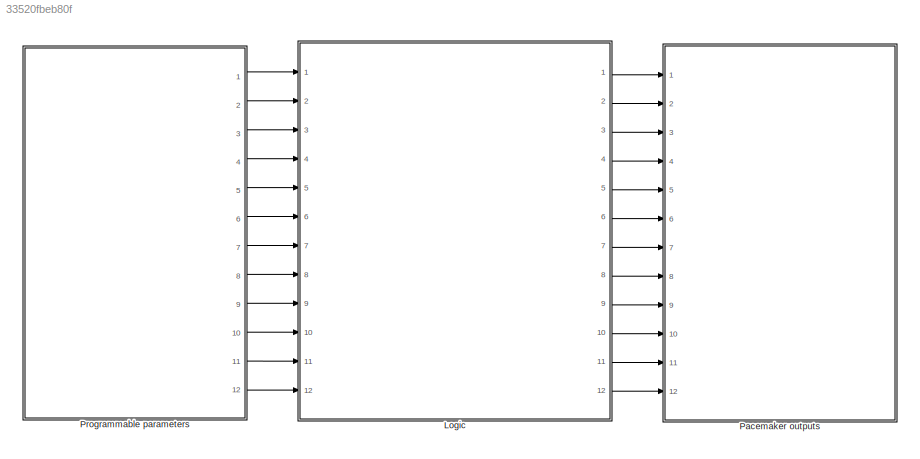
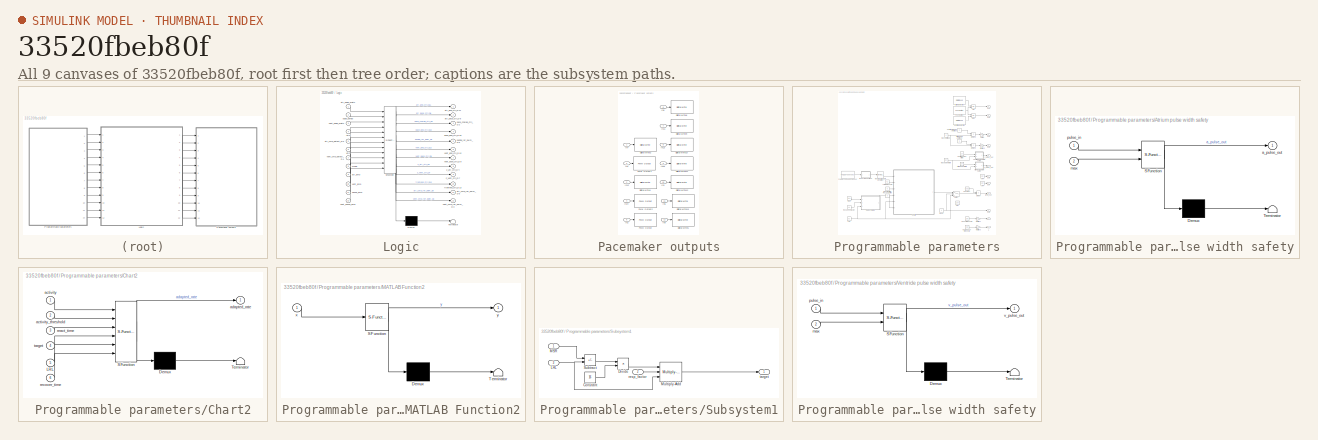
[diagram: thumbnail index - all 9 canvases of the model, root first then tree order]
MODEL slx_33520fbeb80f
KIND model
CONFIG AbsTol = auto
CONFIG EnableMultiTasking = on
CONFIG FixedStep = 1e-3
CONFIG MaxStep = auto
CONFIG MinStep = auto
CONFIG RelTol = 1e-3
CONFIG SampleTimeConstraint = Unconstrained
CONFIG Solver = FixedStepAuto
CONFIG SolverName = FixedStepAuto
CONFIG StartTime = 0.0
CONFIG StopTime = 10.0
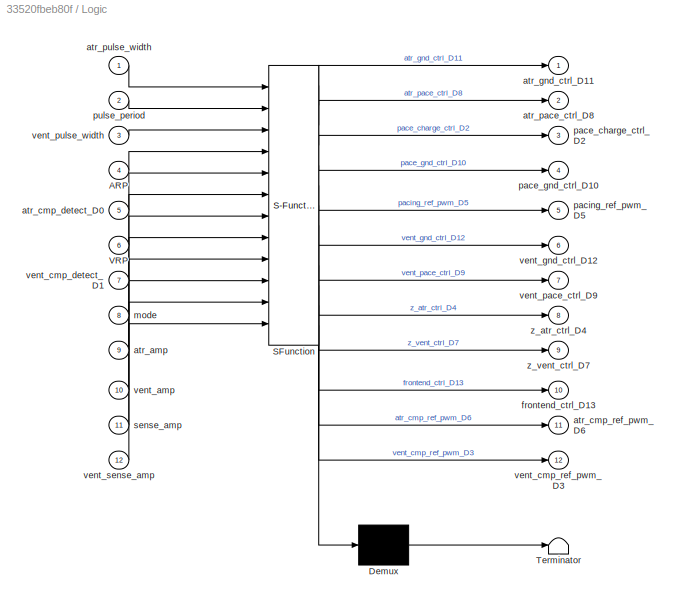
BLOCK [SubSystem] Logic
  ErrorFcn = Stateflow.Translate.translate
  PermitHierarchicalResolution = ExplicitOnly
  PortSchema = {"entries":[{"content":{"sides":[{"content":{"connectorIds":["In5","In7","In8","In10","In9","In3","In1","In6","In4","In2","In11","In12"]},"type":"ConnectorPlacement.EquallySpacedRectSide","uuid":"2bdca257-8b9d-4aeb-8f95-3d09a0a4a1f1"},{"content":{"connectorIds":["Out3","Out8","Out12","Out5","Out11","Out9","Out2","Out7","Out4","Out1","Out6","Out10"],"side":"RIGHT"},"type":"ConnectorPlacement.Equall...<+391ch>
  Ports = [12, 12]
  RequestExecContextInheritance = off
  SFBlockType = Chart
  TreatAsAtomicUnit = on
BLOCK [Demux] Logic/ Demux 
  Outputs = 1
  Ports = [1, 1]
BLOCK [S-Function] Logic/ SFunction 
  EnableBusSupport = on
  FunctionName = sf_sfun
  PortCounts = [12 13]
  Ports = [12, 13]
  SFcnIsStateOwnerBlock = off
  SFunctionDeploymentMode = off
  Tag = Stateflow S-Function 4
BLOCK [Terminator] Logic/ Terminator 
BLOCK [Inport] Logic/ARP
  Port = 4
BLOCK [Inport] Logic/VRP
  Port = 6
BLOCK [Inport] Logic/atr_amp
  Port = 9
BLOCK [Inport] Logic/atr_cmp_detect_D0
  Port = 5
BLOCK [Outport] Logic/atr_cmp_ref_pwm_D6
  Port = 11
BLOCK [Outport] Logic/atr_gnd_ctrl_D11
BLOCK [Outport] Logic/atr_pace_ctrl_D8
  Port = 2
BLOCK [Inport] Logic/atr_pulse_width
BLOCK [Outport] Logic/frontend_ctrl_D13
  Port = 10
BLOCK [Inport] Logic/mode
  Port = 8
BLOCK [Outport] Logic/pace_charge_ctrl_D2
  Port = 3
BLOCK [Outport] Logic/pace_gnd_ctrl_D10
  Port = 4
BLOCK [Outport] Logic/pacing_ref_pwm_D5
  Port = 5
BLOCK [Inport] Logic/pulse_period
  Port = 2
BLOCK [Inport] Logic/sense_amp
  Port = 11
BLOCK [Inport] Logic/vent_amp
  Port = 10
BLOCK [Inport] Logic/vent_cmp_detect_D1
  Port = 7
BLOCK [Outport] Logic/vent_cmp_ref_pwm_D3
  Port = 12
BLOCK [Outport] Logic/vent_gnd_ctrl_D12
  Port = 6
BLOCK [Outport] Logic/vent_pace_ctrl_D9
  Port = 7
BLOCK [Inport] Logic/vent_pulse_width
  Port = 3
BLOCK [Inport] Logic/vent_sense_amp
  Port = 12
BLOCK [Outport] Logic/z_atr_ctrl_D4
  Port = 8
BLOCK [Outport] Logic/z_vent_ctrl_D7
  Port = 9
BLOCK [SubSystem] Pacemaker outputs
  Ports = [12]
  RequestExecContextInheritance = off
BLOCK [Reference] Pacemaker outputs/Digital Write1  REF=frdmk64flib/Digital Write
  Ports = [1]
  SourceBlock = frdmk64flib/Digital Write
  SourceProductBaseCode = EC_FRDM_K64F
  SourceType = freedomk64f.DigitalWrite
BLOCK [Reference] Pacemaker outputs/Digital Write10  REF=frdmk64flib/Digital Write
  Ports = [1]
  SourceBlock = frdmk64flib/Digital Write
  SourceProductBaseCode = EC_FRDM_K64F
  SourceType = freedomk64f.DigitalWrite
BLOCK [Reference] Pacemaker outputs/Digital Write11  REF=frdmk64flib/Digital Write
  Ports = [1]
  SourceBlock = frdmk64flib/Digital Write
  SourceProductBaseCode = EC_FRDM_K64F
  SourceType = freedomk64f.DigitalWrite
BLOCK [Reference] Pacemaker outputs/Digital Write12  REF=frdmk64flib/Digital Write
  Ports = [1]
  SourceBlock = frdmk64flib/Digital Write
  SourceProductBaseCode = EC_FRDM_K64F
  SourceType = freedomk64f.DigitalWrite
BLOCK [Reference] Pacemaker outputs/Digital Write13  REF=frdmk64flib/Digital Write
  Ports = [1]
  SourceBlock = frdmk64flib/Digital Write
  SourceProductBaseCode = EC_FRDM_K64F
  SourceType = freedomk64f.DigitalWrite
BLOCK [Reference] Pacemaker outputs/Digital Write2  REF=frdmk64flib/Digital Write
  Ports = [1]
  SourceBlock = frdmk64flib/Digital Write
  SourceProductBaseCode = EC_FRDM_K64F
  SourceType = freedomk64f.DigitalWrite
BLOCK [Reference] Pacemaker outputs/Digital Write4  REF=frdmk64flib/Digital Write
  Ports = [1]
  SourceBlock = frdmk64flib/Digital Write
  SourceProductBaseCode = EC_FRDM_K64F
  SourceType = freedomk64f.DigitalWrite
BLOCK [Reference] Pacemaker outputs/Digital Write8  REF=frdmk64flib/Digital Write
  Ports = [1]
  SourceBlock = frdmk64flib/Digital Write
  SourceProductBaseCode = EC_FRDM_K64F
  SourceType = freedomk64f.DigitalWrite
BLOCK [Reference] Pacemaker outputs/Digital Write9  REF=frdmk64flib/Digital Write
  Ports = [1]
  SourceBlock = frdmk64flib/Digital Write
  SourceProductBaseCode = EC_FRDM_K64F
  SourceType = freedomk64f.DigitalWrite
BLOCK [Inport] Pacemaker outputs/In1
  Port = 3
BLOCK [Inport] Pacemaker outputs/In11
  Port = 7
BLOCK [Inport] Pacemaker outputs/In12
  Port = 2
BLOCK [Inport] Pacemaker outputs/In13
  Port = 8
BLOCK [Inport] Pacemaker outputs/In14
  Port = 4
BLOCK [Inport] Pacemaker outputs/In15
  Port = 9
BLOCK [Inport] Pacemaker outputs/In2
  Port = 5
BLOCK [Inport] Pacemaker outputs/In3
  Port = 10
BLOCK [Inport] Pacemaker outputs/In6
  Port = 11
BLOCK [Inport] Pacemaker outputs/In7
BLOCK [Inport] Pacemaker outputs/In8
  Port = 6
BLOCK [Inport] Pacemaker outputs/In9
  Port = 12
BLOCK [Reference] Pacemaker outputs/PWM Output  REF=frdmk64flib/PWM Output
  Ports = [1]
  SourceBlock = frdmk64flib/PWM Output
  SourceProductBaseCode = EC_FRDM_K64F
  SourceType = freedomk64f.PWMOutput
BLOCK [Reference] Pacemaker outputs/PWM Output1  REF=frdmk64flib/PWM Output
  Ports = [1]
  SourceBlock = frdmk64flib/PWM Output
  SourceProductBaseCode = EC_FRDM_K64F
  SourceType = freedomk64f.PWMOutput
BLOCK [Reference] Pacemaker outputs/PWM Output2  REF=frdmk64flib/PWM Output
  Ports = [1]
  SourceBlock = frdmk64flib/PWM Output
  SourceProductBaseCode = EC_FRDM_K64F
  SourceType = freedomk64f.PWMOutput
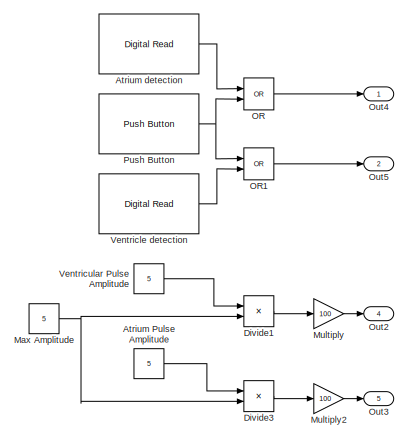
[diagram: Programmable parameters - part 1/2, top right region]
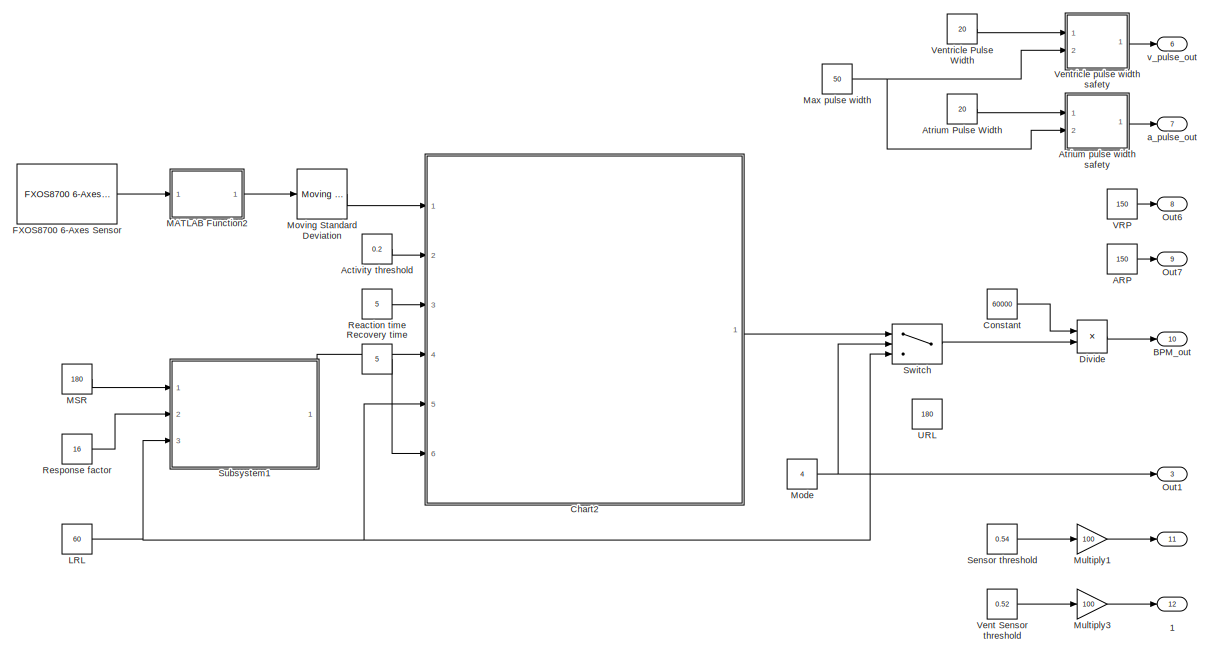
[diagram: Programmable parameters - part 2/2, full width, bottom band]
BLOCK [SubSystem] Programmable parameters
  Ports = [0, 12]
  RequestExecContextInheritance = off
BLOCK [Outport] Programmable parameters/                                                
  Port = 11
BLOCK [Outport] Programmable parameters/                                                1
  IconDisplay = Port number and signal name
  Port = 12
BLOCK [Constant] Programmable parameters/ARP
  Value = 150
BLOCK [Constant] Programmable parameters/Activity threshold
  Value = 0.2
BLOCK [Constant] Programmable parameters/Atrium Pulse Amplitude
  Value = 5
BLOCK [Constant] Programmable parameters/Atrium Pulse Width
  Value = 20
BLOCK [Reference] Programmable parameters/Atrium detection  REF=frdmk64flib/Digital Read
  Ports = [0, 1]
  SourceBlock = frdmk64flib/Digital Read
  SourceProductBaseCode = EC_FRDM_K64F
  SourceType = freedomk64f.DigitalRead
BLOCK [SubSystem] Programmable parameters/Atrium pulse width safety
  ErrorFcn = Stateflow.Translate.translate
  PermitHierarchicalResolution = ExplicitOnly
  Ports = [2, 1]
  RequestExecContextInheritance = off
  SFBlockType = Chart
  TreatAsAtomicUnit = on
BLOCK [Demux] Programmable parameters/Atrium pulse width safety/ Demux 
  Outputs = 1
  Ports = [1, 1]
BLOCK [S-Function] Programmable parameters/Atrium pulse width safety/ SFunction 
  EnableBusSupport = on
  FunctionName = sf_sfun
  PortCounts = [2 2]
  Ports = [2, 2]
  SFcnIsStateOwnerBlock = off
  SFunctionDeploymentMode = off
  Tag = Stateflow S-Function 1
BLOCK [Terminator] Programmable parameters/Atrium pulse width safety/ Terminator 
BLOCK [Outport] Programmable parameters/Atrium pulse width safety/a_pulse_out
BLOCK [Inport] Programmable parameters/Atrium pulse width safety/max
  Port = 2
BLOCK [Inport] Programmable parameters/Atrium pulse width safety/pulse_in
BLOCK [Outport] Programmable parameters/BPM_out
  Port = 10
BLOCK [SubSystem] Programmable parameters/Chart2
  ErrorFcn = Stateflow.Translate.translate
  PermitHierarchicalResolution = ExplicitOnly
  PortSchema = {"entries":[{"content":{"sides":[{"content":{"connectorIds":["In1","In2","In3","In6","In4","In5"]},"type":"ConnectorPlacement.EquallySpacedRectSide","uuid":"bb9994d7-39bc-48cc-973a-fbe19809742a"},{"content":{"connectorIds":["Out1"],"side":"RIGHT"},"type":"ConnectorPlacement.EquallySpacedRectSide","uuid":"20773666-cf4d-4804-bbb0-64c8e4eaf526"},{"content":{"connectorIds":[],"side":"TOP"},"type":"Con...<+272ch>
  Ports = [6, 1]
  RequestExecContextInheritance = off
  SFBlockType = Chart
  TreatAsAtomicUnit = on
BLOCK [Demux] Programmable parameters/Chart2/ Demux 
  Outputs = 1
  Ports = [1, 1]
BLOCK [S-Function] Programmable parameters/Chart2/ SFunction 
  EnableBusSupport = on
  FunctionName = sf_sfun
  PortCounts = [6 2]
  Ports = [6, 2]
  SFcnIsStateOwnerBlock = off
  SFunctionDeploymentMode = off
  Tag = Stateflow S-Function 6
BLOCK [Terminator] Programmable parameters/Chart2/ Terminator 
BLOCK [Inport] Programmable parameters/Chart2/LRL
  Port = 5
BLOCK [Inport] Programmable parameters/Chart2/activity
BLOCK [Inport] Programmable parameters/Chart2/activity_threshold
  Port = 2
BLOCK [Outport] Programmable parameters/Chart2/adapted_rate
BLOCK [Inport] Programmable parameters/Chart2/react_time
  Port = 3
BLOCK [Inport] Programmable parameters/Chart2/recover_time
  Port = 6
BLOCK [Inport] Programmable parameters/Chart2/target
  Port = 4
BLOCK [Constant] Programmable parameters/Constant
  Value = 60000
BLOCK [Product] Programmable parameters/Divide
  Inputs = */
  Ports = [2, 1]
BLOCK [Product] Programmable parameters/Divide1
  Inputs = */
  Ports = [2, 1]
BLOCK [Product] Programmable parameters/Divide3
  Inputs = */
  Ports = [2, 1]
BLOCK [Reference] Programmable parameters/FXOS8700 6-Axes Sensor  REF=frdmk64flib/FXOS8700 6-Axes Sensor
  Ports = [0, 1]
  SourceBlock = frdmk64flib/FXOS8700 6-Axes Sensor
  SourceProductBaseCode = EC_FRDM_K64F
  SourceType = freedomk64f.fxos8700
BLOCK [Constant] Programmable parameters/LRL
  OutDataTypeStr = uint16
  Value = 60
BLOCK [SubSystem] Programmable parameters/MATLAB Function2
  ErrorFcn = Stateflow.Translate.translate
  PermitHierarchicalResolution = ExplicitOnly
  Ports = [1, 1]
  RequestExecContextInheritance = off
  SFBlockType = MATLAB Function
  TreatAsAtomicUnit = on
BLOCK [Demux] Programmable parameters/MATLAB Function2/ Demux 
  Outputs = 1
  Ports = [1, 1]
BLOCK [S-Function] Programmable parameters/MATLAB Function2/ SFunction 
  EnableBusSupport = on
  FunctionName = sf_sfun
  PortCounts = [1 2]
  Ports = [1, 2]
  SFcnIsStateOwnerBlock = off
  SFunctionDeploymentMode = off
  Tag = Stateflow S-Function 8
BLOCK [Terminator] Programmable parameters/MATLAB Function2/ Terminator 
BLOCK [Inport] Programmable parameters/MATLAB Function2/x
BLOCK [Outport] Programmable parameters/MATLAB Function2/y
  VectorParamsAs1DForOutWhenUnconnected = off
BLOCK [Constant] Programmable parameters/MSR
  OutDataTypeStr = uint16
  Value = 180
BLOCK [Constant] Programmable parameters/Max Amplitude
  Value = 5
BLOCK [Constant] Programmable parameters/Max pulse width
  Value = 50
BLOCK [Constant] Programmable parameters/Mode
  Value = 4
BLOCK [Reference] Programmable parameters/Moving Standard Deviation  REF=dspstat3/Moving
Standard
Deviation
  Ports = [1, 1]
  SourceBlock = dspstat3/Moving\nStandard\nDeviation
  SourceProductBaseCode = DS
  SourceType = dsp.simulink.MovingStandardDeviation
BLOCK [Gain] Programmable parameters/Multiply
  Gain = 100
BLOCK [Gain] Programmable parameters/Multiply1
  Gain = 100
BLOCK [Gain] Programmable parameters/Multiply2
  Gain = 100
BLOCK [Gain] Programmable parameters/Multiply3
  Gain = 100
BLOCK [Logic] Programmable parameters/OR
  AllPortsSameDT = off
  IconShape = distinctive
  Operator = OR
  OutDataTypeStr = boolean
  Ports = [2, 1]
BLOCK [Logic] Programmable parameters/OR1
  AllPortsSameDT = off
  IconShape = distinctive
  Operator = OR
  OutDataTypeStr = boolean
  Ports = [2, 1]
BLOCK [Outport] Programmable parameters/Out1
  Port = 3
BLOCK [Outport] Programmable parameters/Out2
  Port = 4
BLOCK [Outport] Programmable parameters/Out3
  Port = 5
BLOCK [Outport] Programmable parameters/Out4
BLOCK [Outport] Programmable parameters/Out5
  Port = 2
BLOCK [Outport] Programmable parameters/Out6
  Port = 8
BLOCK [Outport] Programmable parameters/Out7
  Port = 9
BLOCK [Reference] Programmable parameters/Push Button  REF=frdmk64flib/Push Button
  Ports = [0, 1]
  SourceBlock = frdmk64flib/Push Button
  SourceProductBaseCode = EC_FRDM_K64F
  SourceType = freedomk64f.PushButton
BLOCK [Constant] Programmable parameters/Reaction time
  Value = 5
BLOCK [Constant] Programmable parameters/Recovery time
  Value = 5
BLOCK [Constant] Programmable parameters/Response factor
  OutDataTypeStr = uint16
  Value = 16
BLOCK [Constant] Programmable parameters/Sensor threshold
  Value = 0.54
BLOCK [SubSystem] Programmable parameters/Subsystem1
  Ports = [3, 1]
  RequestExecContextInheritance = off
BLOCK [Constant] Programmable parameters/Subsystem1/Constant
  Value = 16
BLOCK [Product] Programmable parameters/Subsystem1/Divide
  Inputs = */
  Ports = [2, 1]
BLOCK [Inport] Programmable parameters/Subsystem1/LRL
  Port = 3
BLOCK [Inport] Programmable parameters/Subsystem1/MSR
BLOCK [Reference] Programmable parameters/Subsystem1/Multiply-Add  REF=hdlsllib/HDL Operations/Multiply-Add
  Ports = [3, 1]
  SourceBlock = hdlsllib/HDL Operations/Multiply-Add
  SourceProductBaseCode = SL
  SourceType = Multiply-Add
BLOCK [Sum] Programmable parameters/Subsystem1/Subtract
  IconShape = rectangular
  Inputs = +-
  Ports = [2, 1]
BLOCK [Inport] Programmable parameters/Subsystem1/resp_factor
  Port = 2
BLOCK [Outport] Programmable parameters/Subsystem1/target
  OutDataTypeStr = uint16
  SourceOfInitialOutputValue = Input signal
BLOCK [Switch] Programmable parameters/Switch
  InputSameDT = off
  SaturateOnIntegerOverflow = off
  Threshold = 5
BLOCK [Constant] Programmable parameters/URL
  Commented = on
  Value = 180
BLOCK [Constant] Programmable parameters/VRP
  Value = 150
BLOCK [Constant] Programmable parameters/Vent Sensor threshold
  Value = 0.52
BLOCK [Constant] Programmable parameters/Ventricle Pulse Width
  Value = 20
BLOCK [Reference] Programmable parameters/Ventricle detection   REF=frdmk64flib/Digital Read
  Ports = [0, 1]
  SourceBlock = frdmk64flib/Digital Read
  SourceProductBaseCode = EC_FRDM_K64F
  SourceType = freedomk64f.DigitalRead
BLOCK [SubSystem] Programmable parameters/Ventricle pulse width safety
  ErrorFcn = Stateflow.Translate.translate
  PermitHierarchicalResolution = ExplicitOnly
  Ports = [2, 1]
  RequestExecContextInheritance = off
  SFBlockType = Chart
  TreatAsAtomicUnit = on
BLOCK [Demux] Programmable parameters/Ventricle pulse width safety/ Demux 
  Outputs = 1
  Ports = [1, 1]
BLOCK [S-Function] Programmable parameters/Ventricle pulse width safety/ SFunction 
  EnableBusSupport = on
  FunctionName = sf_sfun
  PortCounts = [2 2]
  Ports = [2, 2]
  SFcnIsStateOwnerBlock = off
  SFunctionDeploymentMode = off
  Tag = Stateflow S-Function 3
BLOCK [Terminator] Programmable parameters/Ventricle pulse width safety/ Terminator 
BLOCK [Inport] Programmable parameters/Ventricle pulse width safety/max
  Port = 2
BLOCK [Inport] Programmable parameters/Ventricle pulse width safety/pulse_in
BLOCK [Outport] Programmable parameters/Ventricle pulse width safety/v_pulse_out
BLOCK [Constant] Programmable parameters/Ventricular Pulse Amplitude
  Value = 5
BLOCK [Outport] Programmable parameters/a_pulse_out
  Port = 7
BLOCK [Outport] Programmable parameters/v_pulse_out
  Port = 6
LINE Logic:1 -> Pacemaker outputs:10
LINE Logic:10 -> Pacemaker outputs:12
LINE Logic:11 -> Pacemaker outputs:5
LINE Logic:12 -> Pacemaker outputs:3
LINE Logic:2 -> Pacemaker outputs:7
LINE Logic:3 -> Pacemaker outputs:1
LINE Logic:4 -> Pacemaker outputs:9
LINE Logic:5 -> Pacemaker outputs:4
LINE Logic:6 -> Pacemaker outputs:11
LINE Logic:7 -> Pacemaker outputs:8
LINE Logic:8 -> Pacemaker outputs:2
LINE Logic:9 -> Pacemaker outputs:6
LINE Pacemaker outputs/In11:1 -> Pacemaker outputs/Digital Write9:1
LINE Pacemaker outputs/In12:1 -> Pacemaker outputs/Digital Write4:1
LINE Pacemaker outputs/In13:1 -> Pacemaker outputs/Digital Write10:1
LINE Pacemaker outputs/In14:1 -> Pacemaker outputs/PWM Output2:1
LINE Pacemaker outputs/In15:1 -> Pacemaker outputs/Digital Write11:1
LINE Pacemaker outputs/In1:1 -> Pacemaker outputs/PWM Output1:1
LINE Pacemaker outputs/In2:1 -> Pacemaker outputs/PWM Output:1
LINE Pacemaker outputs/In3:1 -> Pacemaker outputs/Digital Write12:1
LINE Pacemaker outputs/In6:1 -> Pacemaker outputs/Digital Write13:1
LINE Pacemaker outputs/In7:1 -> Pacemaker outputs/Digital Write2:1
LINE Pacemaker outputs/In8:1 -> Pacemaker outputs/Digital Write8:1
LINE Pacemaker outputs/In9:1 -> Pacemaker outputs/Digital Write1:1
LINE Programmable parameters/ARP:1 -> Programmable parameters/Out7:1
LINE Programmable parameters/Activity threshold:1 -> Programmable parameters/Chart2:2
LINE Programmable parameters/Atrium Pulse Amplitude:1 -> Programmable parameters/Divide3:1
LINE Programmable parameters/Atrium Pulse Width:1 -> Programmable parameters/Atrium pulse width safety:1
LINE Programmable parameters/Atrium detection:1 -> Programmable parameters/OR:1
LINE Programmable parameters/Atrium pulse width safety:1 -> Programmable parameters/a_pulse_out:1
LINE Programmable parameters/Chart2:1 -> Programmable parameters/Switch:1
LINE Programmable parameters/Constant:1 -> Programmable parameters/Divide:1
LINE Programmable parameters/Divide1:1 -> Programmable parameters/Multiply:1
LINE Programmable parameters/Divide3:1 -> Programmable parameters/Multiply2:1
LINE Programmable parameters/Divide:1 -> Programmable parameters/BPM_out:1
LINE Programmable parameters/FXOS8700 6-Axes Sensor:1 -> Programmable parameters/MATLAB Function2:1
NET Programmable parameters/LRL:1 -> Programmable parameters/Chart2:5, Programmable parameters/Subsystem1:3, Programmable parameters/Switch:3
LINE Programmable parameters/MATLAB Function2:1 -> Programmable parameters/Moving Standard Deviation:1
LINE Programmable parameters/MSR:1 -> Programmable parameters/Subsystem1:1
NET Programmable parameters/Max Amplitude:1 -> Programmable parameters/Divide1:2, Programmable parameters/Divide3:2
NET Programmable parameters/Max pulse width:1 -> Programmable parameters/Atrium pulse width safety:2, Programmable parameters/Ventricle pulse width safety:2
NET Programmable parameters/Mode:1 -> Programmable parameters/Out1:1, Programmable parameters/Switch:2
LINE Programmable parameters/Moving Standard Deviation:1 -> Programmable parameters/Chart2:1
LINE Programmable parameters/Multiply1:1 -> Programmable parameters/                                                :1
LINE Programmable parameters/Multiply2:1 -> Programmable parameters/Out3:1
LINE Programmable parameters/Multiply3:1 -> Programmable parameters/                                                1:1
LINE Programmable parameters/Multiply:1 -> Programmable parameters/Out2:1
LINE Programmable parameters/OR1:1 -> Programmable parameters/Out5:1
LINE Programmable parameters/OR:1 -> Programmable parameters/Out4:1
NET Programmable parameters/Push Button:1 -> Programmable parameters/OR1:1, Programmable parameters/OR:2
LINE Programmable parameters/Reaction time:1 -> Programmable parameters/Chart2:3
LINE Programmable parameters/Recovery time:1 -> Programmable parameters/Chart2:6
LINE Programmable parameters/Response factor:1 -> Programmable parameters/Subsystem1:2
LINE Programmable parameters/Sensor threshold:1 -> Programmable parameters/Multiply1:1
LINE Programmable parameters/Subsystem1/Constant:1 -> Programmable parameters/Subsystem1/Divide:2
LINE Programmable parameters/Subsystem1/Divide:1 -> Programmable parameters/Subsystem1/Multiply-Add:1
NET Programmable parameters/Subsystem1/LRL:1 -> Programmable parameters/Subsystem1/Multiply-Add:3, Programmable parameters/Subsystem1/Subtract:2
LINE Programmable parameters/Subsystem1/MSR:1 -> Programmable parameters/Subsystem1/Subtract:1
LINE Programmable parameters/Subsystem1/Multiply-Add:1 -> Programmable parameters/Subsystem1/target:1
LINE Programmable parameters/Subsystem1/Subtract:1 -> Programmable parameters/Subsystem1/Divide:1
LINE Programmable parameters/Subsystem1/resp_factor:1 -> Programmable parameters/Subsystem1/Multiply-Add:2
LINE Programmable parameters/Subsystem1:1 -> Programmable parameters/Chart2:4
LINE Programmable parameters/Switch:1 -> Programmable parameters/Divide:2
LINE Programmable parameters/VRP:1 -> Programmable parameters/Out6:1
LINE Programmable parameters/Vent Sensor threshold:1 -> Programmable parameters/Multiply3:1
LINE Programmable parameters/Ventricle Pulse Width:1 -> Programmable parameters/Ventricle pulse width safety:1
LINE Programmable parameters/Ventricle detection :1 -> Programmable parameters/OR1:2
LINE Programmable parameters/Ventricle pulse width safety:1 -> Programmable parameters/v_pulse_out:1
LINE Programmable parameters/Ventricular Pulse Amplitude:1 -> Programmable parameters/Divide1:1
LINE Programmable parameters:1 -> Logic:5
LINE Programmable parameters:10 -> Logic:2
LINE Programmable parameters:11 -> Logic:11
LINE Programmable parameters:12 -> Logic:12
LINE Programmable parameters:2 -> Logic:7
LINE Programmable parameters:3 -> Logic:8
LINE Programmable parameters:4 -> Logic:10
LINE Programmable parameters:5 -> Logic:9
LINE Programmable parameters:6 -> Logic:3
LINE Programmable parameters:7 -> Logic:1
LINE Programmable parameters:8 -> Logic:6
LINE Programmable parameters:9 -> Logic:4
note: NET lines group one-source signal fan-out (src -> all destinations, sorted); 1:1 wires keep LINE
CHART Programmable parameters/Atrium pulse width safety states=3 transitions=3
  STATE_LABEL 'Acceptable\n\nentry:\na_pulse_out = pulse_in;\n'
  STATE_LABEL 'Entry'
  STATE_LABEL 'Unacceptable\n\nentry:\na_pulse_out = max;'
CHART Programmable parameters/Ventricle pulse width safety states=3 transitions=3
  STATE_LABEL 'Acceptable\n\nentry:\nv_pulse_out = pulse_in;\n'
  STATE_LABEL 'Entry'
  STATE_LABEL 'Unacceptable\n\nentry:\nv_pulse_out = max;'
CHART Logic states=23 transitions=43
  STATE_LABEL 'AAI'
  STATE_LABEL 'AAI_Pacing\n\nentry:\nfrontend_ctrl_D13= 0;\npace_charge_ctrl_D2 = 0;\npace_gnd_ctrl_D10= 1;\natr_pace_ctrl_D8 = 1;\natr_gnd_ctrl_D11= 0;\nz_atr_ctrl_D4= 0;\n'
  STATE_LABEL 'AAI_Charging\n\nentry:\nfrontend_ctrl_D13= 1;\npacing_ref_pwm_D5= atr_amp;\natr_pace_ctrl_D8 = 0;\npace_charge_ctrl_D2 = 1;\npace_gnd_ctrl_D10= 1;\natr_gnd_ctrl_D11= 1;\natr_cmp_ref_pwm_D6= sense_amp;\nz_atr_ctrl_D4= 0;\n'
  STATE_LABEL 'AAI_Inhibition\n\nentry:\nfrontend_ctrl_D13= 0;\natr_pace_ctrl_D8 = 0;\natr_gnd_ctrl_D11= 1;\npace_charge_ctrl_D2 = 1;\npace_gnd_ctrl_D10= 1;\nz_atr_ctrl_D4= 0;\n'
  STATE_LABEL 'after(pulse_period - atr_pulse_width - ARP,msec)'
  STATE_LABEL '[atr_cmp_detect_D0 == 1]'
  STATE_LABEL '[after(atr_pulse_width,msec)]'
  STATE_LABEL '[after(atr_pulse_width,msec)]'
  STATE_LABEL '[after(ARP, msec)]'
  STATE_LABEL 'AAI_Pacing\n\nentry:\nfrontend_ctrl_D13= 0;\npace_charge_ctrl_D2 = 0;\npace_gnd_ctrl_D10= 1;\natr_pace_ctrl_D8 = 1;\natr_gnd_ctrl_D11= 0;\nz_atr_ctrl_D4= 0;\n'
  STATE_LABEL 'AAI_Charging\n\nentry:\nfrontend_ctrl_D13= 1;\npacing_ref_pwm_D5= atr_amp;\natr_pace_ctrl_D8 = 0;\npace_charge_ctrl_D2 = 1;\npace_gnd_ctrl_D10= 1;\natr_gnd_ctrl_D11= 1;\natr_cmp_ref_pwm_D6= sense_amp;\nz_atr_ctrl_D4= 0;\n'
  STATE_LABEL 'AAI_Inhibition\n\nentry:\nfrontend_ctrl_D13= 0;\natr_pace_ctrl_D8 = 0;\natr_gnd_ctrl_D11= 1;\npace_charge_ctrl_D2 = 1;\npace_gnd_ctrl_D10= 1;\nz_atr_ctrl_D4= 0;\n'
  STATE_LABEL 'VOO'
  STATE_LABEL 'VOO_Charging\n\nentry:\nvent_pace_ctrl_D9 = 0;\npacing_ref_pwm_D5= vent_amp;\npace_charge_ctrl_D2 = 1;\npace_gnd_ctrl_D10= 1;\nvent_gnd_ctrl_D12= 1;\nz_vent_ctrl_D7 = 0;\n'
  STATE_LABEL 'VOO_Pacing\n\nentry:\npace_charge_ctrl_D2 = 0;\npace_gnd_ctrl_D10= 1;\nvent_pace_ctrl_D9 = 1;\nvent_gnd_ctrl_D12 = 0;\nz_vent_ctrl_D7 = 0;\n'
  STATE_LABEL '[after(pulse_period - vent_pulse_width,msec)]'
  STATE_LABEL '[after(vent_pulse_width,msec)]'
  STATE_LABEL 'VOO_Charging\n\nentry:\nvent_pace_ctrl_D9 = 0;\npacing_ref_pwm_D5= vent_amp;\npace_charge_ctrl_D2 = 1;\npace_gnd_ctrl_D10= 1;\nvent_gnd_ctrl_D12= 1;\nz_vent_ctrl_D7 = 0;\n'
  STATE_LABEL 'VOO_Pacing\n\nentry:\npace_charge_ctrl_D2 = 0;\npace_gnd_ctrl_D10= 1;\nvent_pace_ctrl_D9 = 1;\nvent_gnd_ctrl_D12 = 0;\nz_vent_ctrl_D7 = 0;\n'
  STATE_LABEL 'VVI'
  STATE_LABEL 'VVI_Charging\n\nentry:\nfrontend_ctrl_D13= 1;\npacing_ref_pwm_D5= vent_amp;\nvent_pace_ctrl_D9 = 0;\npace_charge_ctrl_D2 = 1;\npace_gnd_ctrl_D10= 1;\nvent_gnd_ctrl_D12= 1;\nvent_cmp_ref_pwm_D3= vent_sense_amp;\nz_vent_ctrl_D7= 0;\n'
  STATE_LABEL 'VVI_Pacing\n\nentry:\nfrontend_ctrl_D13= 0;\npace_charge_ctrl_D2 = 0;\npace_gnd_ctrl_D10= 1;\nvent_pace_ctrl_D9 = 1;\nvent_gnd_ctrl_D12= 0;\nz_vent_ctrl_D7= 0;\n'
  STATE_LABEL 'VVI_Inhibition\n\nentry:\nfrontend_ctrl_D13= 0;\nvent_pace_ctrl_D9 = 0;\nvent_gnd_ctrl_D12= 1;\npace_charge_ctrl_D2 = 1;\npace_gnd_ctrl_D10= 1;\nz_vent_ctrl_D7= 0;\n'
  STATE_LABEL 'after(pulse_period - vent_pulse_width - VRP,msec)'
  STATE_LABEL '[vent_cmp_detect_D1 == 1]'
  STATE_LABEL '[after(vent_pulse_width,msec)]'
  STATE_LABEL '[after(vent_pulse_width,msec)]'
  STATE_LABEL '[after(VRP, msec)]'
  STATE_LABEL 'VVI_Charging\n\nentry:\nfrontend_ctrl_D13= 1;\npacing_ref_pwm_D5= vent_amp;\nvent_pace_ctrl_D9 = 0;\npace_charge_ctrl_D2 = 1;\npace_gnd_ctrl_D10= 1;\nvent_gnd_ctrl_D12= 1;\nvent_cmp_ref_pwm_D3= vent_sense_amp;\nz_vent_ctrl_D7= 0;\n'
  STATE_LABEL 'VVI_Pacing\n\nentry:\nfrontend_ctrl_D13= 0;\npace_charge_ctrl_D2 = 0;\npace_gnd_ctrl_D10= 1;\nvent_pace_ctrl_D9 = 1;\nvent_gnd_ctrl_D12= 0;\nz_vent_ctrl_D7= 0;\n'
  STATE_LABEL 'VVI_Inhibition\n\nentry:\nfrontend_ctrl_D13= 0;\nvent_pace_ctrl_D9 = 0;\nvent_gnd_ctrl_D12= 1;\npace_charge_ctrl_D2 = 1;\npace_gnd_ctrl_D10= 1;\nz_vent_ctrl_D7= 0;\n'
  STATE_LABEL 'Start\n\n'
  STATE_LABEL 'AOO'
  STATE_LABEL 'AOO_Charging\n\nentry:\natr_pace_ctrl_D8 = 0;\npacing_ref_pwm_D5= atr_amp;\npace_charge_ctrl_D2 = 1;\npace_gnd_ctrl_D10= 1;\natr_gnd_ctrl_D11= 1;\nz_atr_ctrl_D4= 0;\n'
  STATE_LABEL 'AOO_Pacing\n\nentry:\npace_charge_ctrl_D2 = 0;\npace_gnd_ctrl_D10= 1;\natr_pace_ctrl_D8 = 1;\natr_gnd_ctrl_D11= 0;\nz_atr_ctrl_D4= 0;\n'
  STATE_LABEL '[after(pulse_period - atr_pulse_width,msec)]'
  STATE_LABEL '[after(atr_pulse_width,msec)]'
  STATE_LABEL 'AOO_Charging\n\nentry:\natr_pace_ctrl_D8 = 0;\npacing_ref_pwm_D5= atr_amp;\npace_charge_ctrl_D2 = 1;\npace_gnd_ctrl_D10= 1;\natr_gnd_ctrl_D11= 1;\nz_atr_ctrl_D4= 0;\n'
  STATE_LABEL 'AOO_Pacing\n\nentry:\npace_charge_ctrl_D2 = 0;\npace_gnd_ctrl_D10= 1;\natr_pace_ctrl_D8 = 1;\natr_gnd_ctrl_D11= 0;\nz_atr_ctrl_D4= 0;\n'
  STATE_LABEL 'AAIR'
CHART Programmable parameters/Chart2 states=5 transitions=13
  STATE_LABEL 'Active\nentry:\nadapted_rate = adapted_rate + inc;'
  STATE_LABEL 'Target\nentry:\nadapted_rate = target;'
  STATE_LABEL 'Start\nentry:\ninc = ceil((target - LRL) / react_time);\ndec = ceil((target - LRL) / recover_time);\nadapted_rate = LRL;'
  STATE_LABEL 'Error\nentry:\nadapted_rate = adapted_rate - inc;'
  STATE_LABEL 'Resting\nentry:\nadapted_rate = adapted_rate - dec;'
CHART Programmable parameters/MATLAB Function2 states=1 transitions=1
  STATE_LABEL 'eML_blk_kernel()'
  STATE_LABEL 'SCRIPT:\nfunction y = avg_accel(x)\ny = sqrt(x(1)^2 + x(2)^2 + x(3)^2);\n'
CHART  states=0 transitions=0
CHART  states=0 transitions=0
CHART  states=0 transitions=0
CHART  states=0 transitions=0
CHART  states=0 transitions=0
